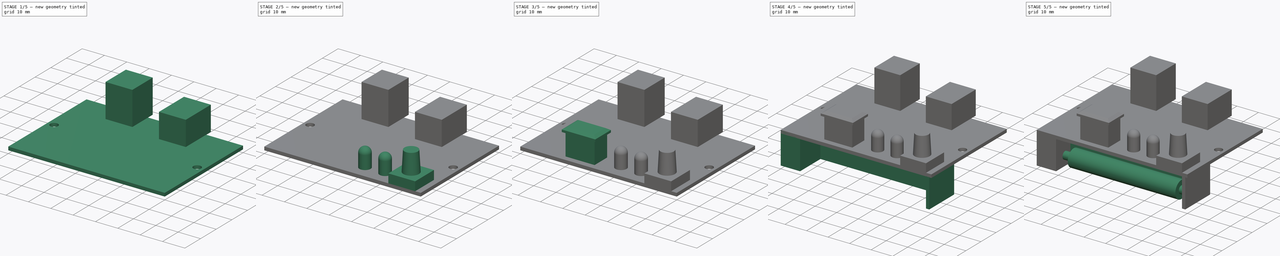
[diagram: build sequence overview — one tinted view per stage of 5, left to right]
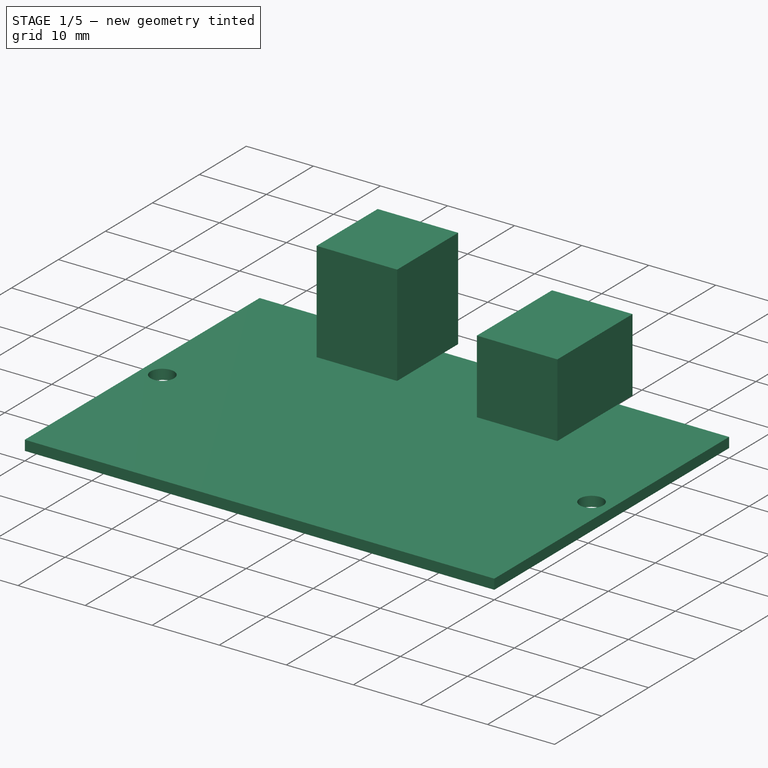
[diagram: stage 1 of 5 — iso view after this stage's code; geometry added in this stage tinted green]
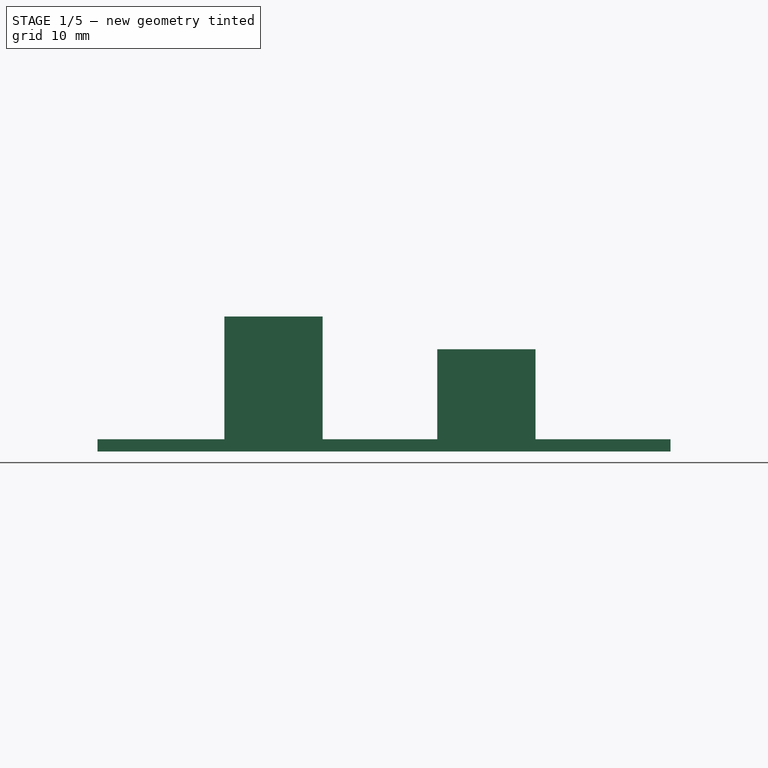
[diagram: stage 1 of 5 — front view after this stage's code; geometry added in this stage tinted green]
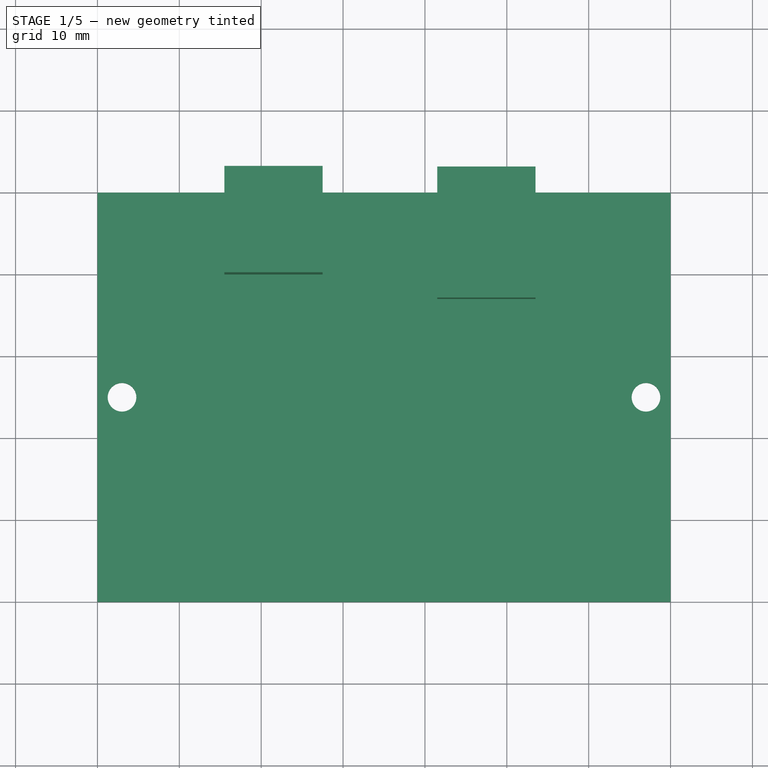
[diagram: stage 1 of 5 — top view after this stage's code; geometry added in this stage tinted green]
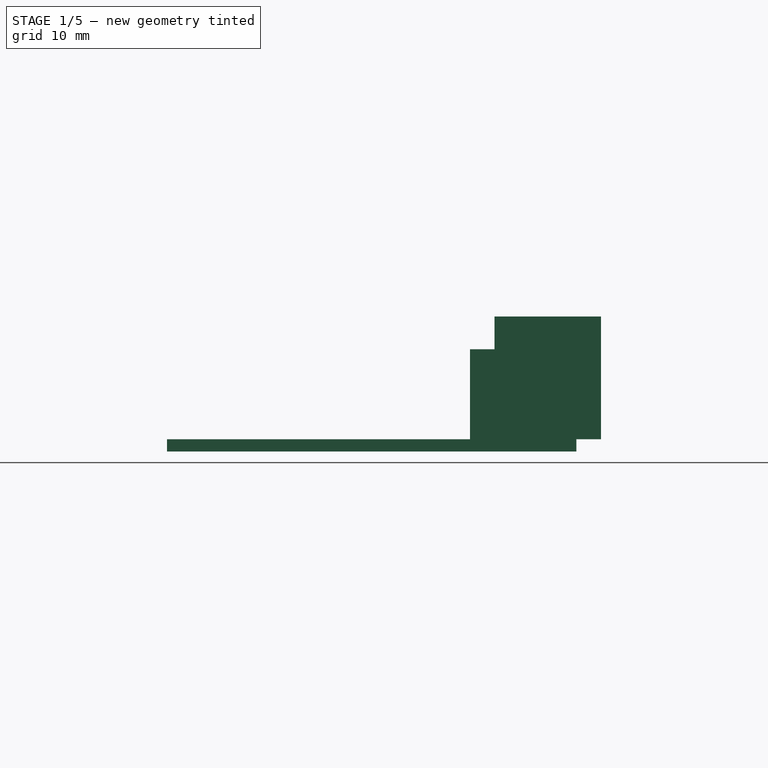
[diagram: stage 1 of 5 — right view after this stage's code; geometry added in this stage tinted green]
FCSTD DOCUMENT  (FreeCAD 1.0R39285 (Git))
Label: Printer-Parts
License: All rights reserved
LicenseURL: https://en.wikipedia.org/wiki/All_rights_reserved
objects: Sketcher::SketchObject×20, PartDesign::Pad×15, PartDesign::Pocket×3, PartDesign::Fillet×2, PartDesign::Chamfer×2, PartDesign::Body×2, PartDesign::AdditiveLoft×1
note: 111 computed .brp shape members not serialized (recipe doc carries the construction recipe); baked Part::Feature solids carry a one-line shape summary decoded from their .brp

FEATURE [PartDesign::Body] Body  label="Heat"
  AllowCompound = false
  Group = -> [Sketch,Pad,Sketch001,Pocket,Sketch002,Pad001,Fillet,Chamfer,Sketch003,Pad002,Sketch004,Pad003,Sketch005,Pad004,Sketch006,Pad005,Sketch007,Pad006,Sketch008,Pad007]
  Origin = -> Origin
  Placement = pos=(0,0,0) rot=(0,1,0;3.14159rad)
  Tip = -> Pad007
FEATURE [Sketcher::SketchObject] Sketch009
  ArcFitTolerance = 1e-06
  AttachmentSupport = -> [XY_Plane001]
  FullyConstrained = true
  MakeInternals = false
  MapMode = 5
  sketch-geometry (10):
    g0: LineSegment StartX=0 StartY=0 StartZ=0 EndX=70 EndY=0 EndZ=0
    g1: LineSegment StartX=70 StartY=0 StartZ=0 EndX=70 EndY=50 EndZ=0
    g2: LineSegment StartX=70 StartY=50 StartZ=0 EndX=0 EndY=50 EndZ=0
    g3: LineSegment StartX=0 StartY=50 StartZ=0 EndX=0 EndY=0 EndZ=0
    g4: Circle CenterX=3 CenterY=25 CenterZ=0 NormalX=0 NormalY=0 NormalZ=1 AngleXU=0 Radius=1.75
    g5: Circle CenterX=67 CenterY=25 CenterZ=0 NormalX=0 NormalY=0 NormalZ=1 AngleXU=0 Radius=1.75
    g6: LineSegment [constr] StartX=3 StartY=25 StartZ=0 EndX=0 EndY=25 EndZ=0
    g7: LineSegment [constr] StartX=67 StartY=25 StartZ=0 EndX=70 EndY=25 EndZ=0
    g8: LineSegment [constr] StartX=3 StartY=25 StartZ=0 EndX=3 EndY=50 EndZ=0
    g9: LineSegment [constr] StartX=3 StartY=25 StartZ=0 EndX=3 EndY=0 EndZ=0
  constraints (29):
    c: Coincident(g0,g1)
    c: Coincident(g1,g2)
    c: Coincident(g2,g3)
    c: Coincident(g3,g0)
    c: Horizontal(g0)
    c: Horizontal(g2)
    c: Vertical(g1)
    c: Vertical(g3)
    c: Distance(g1,g3) = 70
    c: Distance(g0,g2) = 50
    c: Coincident(g0,g-1)
    c: Equal(g5,g4)
    c: Horizontal(g4,g5)
    c: Coincident(g6,g4)
    c: PointOnObject(g6,g3)
    c: Horizontal(g6)
    c: Coincident(g7,g5)
    c: PointOnObject(g7,g1)
    c: Horizontal(g7)
    c: Equal(g7,g6)
    c: Diameter(g4) = 3.5
    c: Coincident(g8,g4)
    c: PointOnObject(g8,g2)
    c: Vertical(g8)
    c: Coincident(g9,g4)
    c: PointOnObject(g9,g0)
    c: Vertical(g9)
    c: Equal(g9,g8)
    c: DistanceX(g6,g6) = 3
FEATURE [PartDesign::Pad] Pad008
  Direction = (0,0,1)
  Length = 1.5
  Length2 = 10
  Profile = -> Sketch009
  ReferenceAxis = -> Sketch009 [N_Axis]
  Refine = true
  Suppressed = false
  Type = 0
FEATURE [Sketcher::SketchObject] Sketch010
  ArcFitTolerance = 1e-06
  AttachmentSupport = -> [Pad008]
  ExternalGeometry = -> [Pad008]
  FullyConstrained = true
  MakeInternals = false
  MapMode = 5
  Placement = pos=(0,0,1.5) rot=(0,0,1;0rad)
  sketch-geometry (4):
    g0: LineSegment StartX=15.5 StartY=53 StartZ=0 EndX=15.5 EndY=40 EndZ=0
    g1: LineSegment StartX=15.5 StartY=40 StartZ=0 EndX=27.5 EndY=40 EndZ=0
    g2: LineSegment StartX=27.5 StartY=40 StartZ=0 EndX=27.5 EndY=53 EndZ=0
    g3: LineSegment StartX=27.5 StartY=53 StartZ=0 EndX=15.5 EndY=53 EndZ=0
  constraints (12):
    c: Coincident(g0,g1)
    c: Coincident(g1,g2)
    c: Coincident(g2,g3)
    c: Coincident(g3,g0)
    c: Vertical(g0)
    c: Vertical(g2)
    c: Horizontal(g1)
    c: Horizontal(g3)
    c: Distance(g0,g2) = 12
    c: Distance(g1,g3) = 13
    c: DistanceX(g-3,g0) = 15.5
    c: DistanceY(g-3,g0) = 3
FEATURE [PartDesign::Pad] Pad009
  BaseFeature = -> Pad008
  Direction = (0,0,1)
  Length = 15
  Length2 = 10
  Profile = -> Sketch010
  ReferenceAxis = -> Sketch010 [N_Axis]
  Refine = true
  Suppressed = false
  Type = 0
FEATURE [Sketcher::SketchObject] Sketch011
  ArcFitTolerance = 1e-06
  AttachmentSupport = -> [Pad009]
  ExternalGeometry = -> [Pad009]
  FullyConstrained = true
  MakeInternals = false
  MapMode = 5
  Placement = pos=(0,53,0) rot=(0,0.707107,0.707107;3.14159rad)
  sketch-geometry (7):
    g0: LineSegment StartX=-26.5 StartY=15.5 StartZ=0 EndX=-26.5 EndY=1.5 EndZ=0
    g1: LineSegment StartX=-26.5 StartY=1.5 StartZ=0 EndX=-16.5 EndY=1.5 EndZ=0
    g2: LineSegment StartX=-16.5 StartY=1.5 StartZ=0 EndX=-16.5 EndY=15.5 EndZ=0
    g3: LineSegment StartX=-16.5 StartY=15.5 StartZ=0 EndX=-26.5 EndY=15.5 EndZ=0
    g4: LineSegment [constr] StartX=-27.5 StartY=1.5 StartZ=0 EndX=-26.5 EndY=1.5 EndZ=0
    g5: LineSegment [constr] StartX=-16.5 StartY=1.5 StartZ=0 EndX=-15.5 EndY=1.5 EndZ=0
    g6: LineSegment [constr] StartX=-16.5 StartY=15.5 StartZ=0 EndX=-16.5 EndY=16.5 EndZ=0
  constraints (19):
    c: Coincident(g0,g1)
    c: Coincident(g1,g2)
    c: Coincident(g2,g3)
    c: Coincident(g3,g0)
    c: Vertical(g0)
    c: Vertical(g2)
    c: Horizontal(g1)
    c: Horizontal(g3)
    c: PointOnObject(g1,g-4)
    c: Coincident(g4,g-4)
    c: Coincident(g4,g0)
    c: Coincident(g5,g1)
    c: Coincident(g5,g-4)
    c: Coincident(g6,g2)
    c: PointOnObject(g6,g-3)
    c: Vertical(g6)
    c: Equal(g6,g5)
    c: Equal(g5,g4)
    c: DistanceY(g6,g6) = 1
FEATURE [PartDesign::Pocket] Pocket001
  BaseFeature = -> Pad009
  Direction = (0,-1,2e-16)
  Length = 10
  Length2 = 5
  Profile = -> Sketch011
  ReferenceAxis = -> Sketch011 [N_Axis]
  Refine = true
  Suppressed = false
  Type = 0
FEATURE [Sketcher::SketchObject] Sketch012
  ArcFitTolerance = 1e-06
  AttachmentSupport = -> [Pocket001]
  ExternalGeometry = -> [Pocket001]
  FullyConstrained = true
  MakeInternals = false
  MapMode = 5
  Placement = pos=(0,0,1.5) rot=(0,0,1;0rad)
  sketch-geometry (4):
    g0: LineSegment StartX=41.5 StartY=53 StartZ=0 EndX=41.5 EndY=37 EndZ=0
    g1: LineSegment StartX=41.5 StartY=37 StartZ=0 EndX=53.5 EndY=37 EndZ=0
    g2: LineSegment StartX=53.5 StartY=37 StartZ=0 EndX=53.5 EndY=53 EndZ=0
    g3: LineSegment StartX=53.5 StartY=53 StartZ=0 EndX=41.5 EndY=53 EndZ=0
  constraints (12):
    c: Coincident(g0,g1)
    c: Coincident(g1,g2)
    c: Coincident(g2,g3)
    c: Coincident(g3,g0)
    c: Vertical(g0)
    c: Vertical(g2)
    c: Horizontal(g1)
    c: Horizontal(g3)
    c: Distance(g0,g2) = 12
    c: Distance(g1,g3) = 16
    c: DistanceX(g2,g-3) = 16.5
    c: DistanceY(g-3,g2) = 3
FEATURE [PartDesign::Pad] Pad010
  BaseFeature = -> Pocket001
  Direction = (0,0,1)
  Length = 11
  Length2 = 10
  Profile = -> Sketch012
  ReferenceAxis = -> Sketch012 [N_Axis]
  Refine = true
  Suppressed = false
  Type = 0
FEATURE [Sketcher::SketchObject] Sketch013
  ArcFitTolerance = 1e-06
  AttachmentSupport = -> [Pad010]
  ExternalGeometry = -> [Pad010]
  FullyConstrained = true
  MakeInternals = false
  MapMode = 5
  Placement = pos=(0,53,0) rot=(0,0.707107,0.707107;3.14159rad)
  sketch-geometry (20):
    g0: LineSegment StartX=-52.5 StartY=2.5 StartZ=0 EndX=-42.5 EndY=2.5 EndZ=0
    g1: LineSegment StartX=-42.5 StartY=2.5 StartZ=0 EndX=-42.5 EndY=9.5 EndZ=0
    g2: LineSegment StartX=-42.5 StartY=9.5 StartZ=0 EndX=-44.5 EndY=11.5 EndZ=0
    g3: LineSegment StartX=-44.5 StartY=11.5 StartZ=0 EndX=-50.5 EndY=11.5 EndZ=0
    g4: LineSegment StartX=-50.5 StartY=11.5 StartZ=0 EndX=-52.5 EndY=9.5 EndZ=0
    g5: LineSegment StartX=-52.5 StartY=9.5 StartZ=0 EndX=-52.5 EndY=2.5 EndZ=0
    g6: LineSegment [constr] StartX=-50.5 StartY=11.5 StartZ=0 EndX=-50.5 EndY=12.5 EndZ=0
    g7: LineSegment [constr] StartX=-52.5 StartY=2.5 StartZ=0 EndX=-52.5 EndY=1.5 EndZ=0
    g8: LineSegment [constr] StartX=-52.5 StartY=1.5 StartZ=0 EndX=-53.5 EndY=1.5 EndZ=0
    g9: LineSegment [constr] StartX=-52.5 StartY=9.5 StartZ=0 EndX=-50.5 EndY=9.5 EndZ=0
    g10: LineSegment [constr] StartX=-50.5 StartY=9.5 StartZ=0 EndX=-50.5 EndY=11.5 EndZ=0
    g11: LineSegment [constr] StartX=-42.5 StartY=2.5 StartZ=0 EndX=-41.5 EndY=2.5 EndZ=0
    g12: LineSegment StartX=-49.5 StartY=8.5 StartZ=0 EndX=-49.5 EndY=5.5 EndZ=0
    g13: LineSegment StartX=-49.5 StartY=5.5 StartZ=0 EndX=-45.5 EndY=5.5 EndZ=0
    g14: LineSegment StartX=-45.5 StartY=5.5 StartZ=0 EndX=-45.5 EndY=8.5 EndZ=0
    g15: LineSegment StartX=-45.5 StartY=8.5 StartZ=0 EndX=-49.5 EndY=8.5 EndZ=0
    g16: LineSegment [constr] StartX=-49.5 StartY=5.5 StartZ=0 EndX=-49.5 EndY=2.5 EndZ=0
    g17: LineSegment [constr] StartX=-49.5 StartY=5.5 StartZ=0 EndX=-52.5 EndY=5.5 EndZ=0
    g18: LineSegment [constr] StartX=-45.5 StartY=8.5 StartZ=0 EndX=-45.5 EndY=11.5 EndZ=0
    g19: LineSegment [constr] StartX=-45.5 StartY=8.5 StartZ=0 EndX=-42.5 EndY=8.5 EndZ=0
  constraints (58):
    c: Horizontal(g0)
    c: Coincident(g0,g1)
    c: Vertical(g1)
    c: Coincident(g1,g2)
    c: Coincident(g2,g3)
    c: Horizontal(g3)
    c: Coincident(g3,g4)
    c: Coincident(g4,g5)
    c: Coincident(g5,g0)
    c: Vertical(g5)
    c: Equal(g4,g2)
    c: Horizontal(g4,g1)
    c: Coincident(g6,g3)
    c: PointOnObject(g6,g-3)
    c: Vertical(g6)
    c: Coincident(g7,g0)
    c: PointOnObject(g7,g-4)
    c: Vertical(g7)
    c: Coincident(g8,g7)
    c: Coincident(g8,g-4)
    c: Equal(g8,g7)
    c: Equal(g7,g6)
    c: DistanceY(g6,g6) = 1
    c: Coincident(g9,g4)
    c: Horizontal(g9)
    c: Coincident(g10,g9)
    c: Coincident(g10,g3)
    c: Vertical(g10)
    c: Equal(g10,g9)
    c: DistanceY(g10,g10) = 2
    c: Coincident(g11,g0)
    c: PointOnObject(g11,g-5)
    c: Horizontal(g11)
    c: Equal(g11,g7)
    c: Coincident(g12,g13)
    c: Coincident(g13,g14)
    c: Coincident(g14,g15)
    c: Coincident(g15,g12)
    c: Vertical(g12)
    c: Vertical(g14)
    c: Horizontal(g13)
    c: Horizontal(g15)
    c: Coincident(g16,g12)
    c: PointOnObject(g16,g0)
    c: Vertical(g16)
    c: Coincident(g17,g12)
    c: PointOnObject(g17,g5)
    c: Horizontal(g17)
    c: Coincident(g18,g14)
    c: PointOnObject(g18,g3)
    c: Coincident(g19,g14)
    c: PointOnObject(g19,g1)
    c: Horizontal(g19)
    c: Vertical(g18)
    c: Equal(g18,g19)
    c: Equal(g19,g17)
    c: Equal(g17,g16)
    c: DistanceX(g19,g19) = 3
FEATURE [PartDesign::Pocket] Pocket002
  BaseFeature = -> Pad010
  Direction = (0,-1,2e-16)
  Length = 15
  Length2 = 5
  Profile = -> Sketch013
  ReferenceAxis = -> Sketch013 [N_Axis]
  Refine = true
  Suppressed = false
  Type = 0
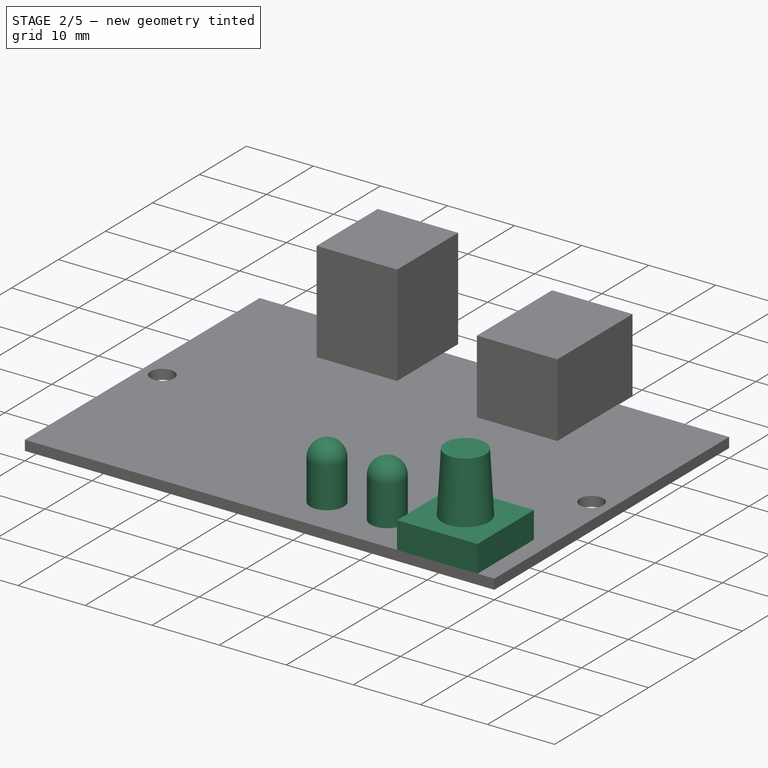
[diagram: stage 2 of 5 — iso view after this stage's code; geometry added in this stage tinted green]
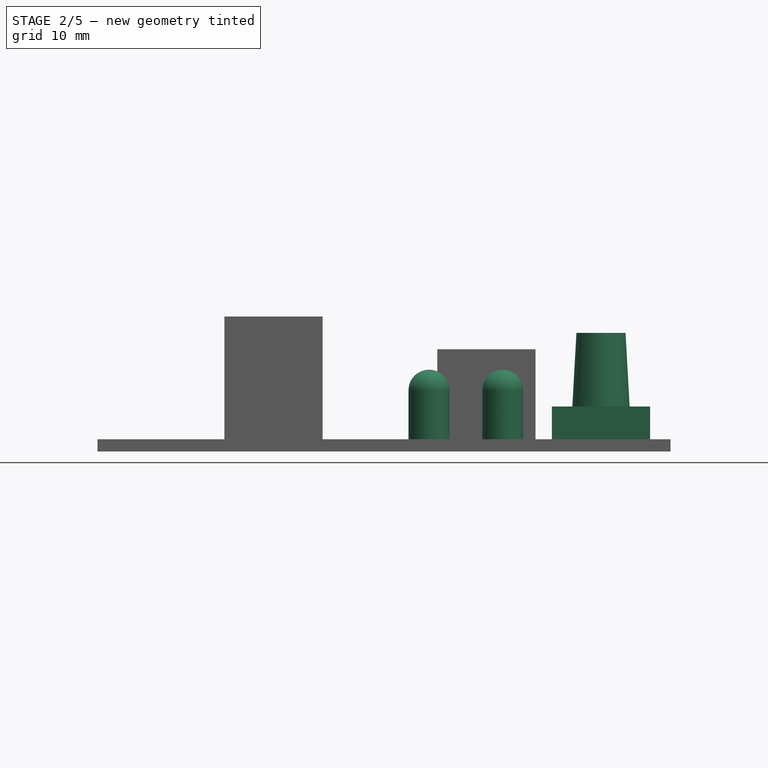
[diagram: stage 2 of 5 — front view after this stage's code; geometry added in this stage tinted green]
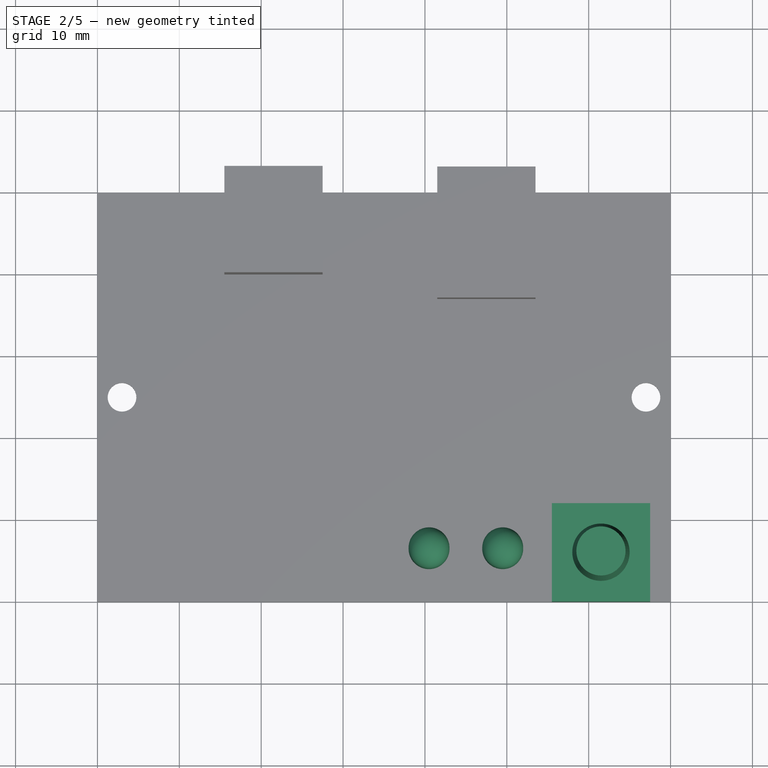
[diagram: stage 2 of 5 — top view after this stage's code; geometry added in this stage tinted green]
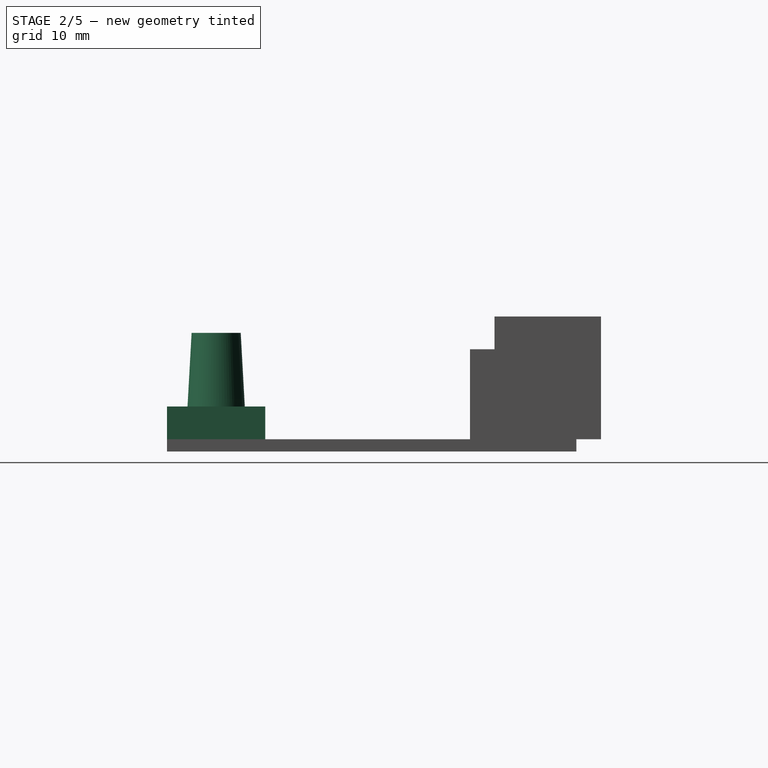
[diagram: stage 2 of 5 — right view after this stage's code; geometry added in this stage tinted green]
FEATURE [Sketcher::SketchObject] Sketch014
  ArcFitTolerance = 1e-06
  AttachmentSupport = -> [Pocket002]
  ExternalGeometry = -> [Pocket002]
  FullyConstrained = true
  MakeInternals = false
  MapMode = 5
  Placement = pos=(0,0,1.5) rot=(0,0,1;0rad)
  sketch-geometry (4):
    g0: LineSegment StartX=55.5 StartY=12 StartZ=0 EndX=55.5 EndY=0 EndZ=0
    g1: LineSegment StartX=55.5 StartY=0 StartZ=0 EndX=67.5 EndY=0 EndZ=0
    g2: LineSegment StartX=67.5 StartY=0 StartZ=0 EndX=67.5 EndY=12 EndZ=0
    g3: LineSegment StartX=67.5 StartY=12 StartZ=0 EndX=55.5 EndY=12 EndZ=0
  constraints (12):
    c: Coincident(g0,g1)
    c: Coincident(g1,g2)
    c: Coincident(g2,g3)
    c: Coincident(g3,g0)
    c: Vertical(g0)
    c: Vertical(g2)
    c: Horizontal(g1)
    c: Horizontal(g3)
    c: Equal(g3,g0)
    c: DistanceX(g3,g3) = 12
    c: PointOnObject(g1,g-1)
    c: DistanceX(g1,g-3) = 2.5
FEATURE [PartDesign::Pad] Pad011
  BaseFeature = -> Pocket002
  Direction = (0,0,1)
  Length = 4
  Length2 = 10
  Profile = -> Sketch014
  ReferenceAxis = -> Sketch014 [N_Axis]
  Refine = true
  Suppressed = false
  Type = 0
FEATURE [Sketcher::SketchObject] Sketch015
  ArcFitTolerance = 1e-06
  AttachmentSupport = -> [Pad011]
  ExternalGeometry = -> [Pad011]
  FullyConstrained = true
  MakeInternals = false
  MapMode = 5
  Placement = pos=(0,0,5.5) rot=(0,0,1;0rad)
  sketch-geometry (1):
    g0: Circle CenterX=61.5 CenterY=6 CenterZ=0 NormalX=0 NormalY=0 NormalZ=1 AngleXU=0 Radius=3.5
  constraints (2):
    c: Symmetric(g-3,g-4,g0)
    c: Diameter(g0) = 7
FEATURE [Sketcher::SketchObject] Sketch016
  ArcFitTolerance = 1e-06
  AttachmentOffset = pos=(0,0,9) rot=(0,0,1;0rad)
  AttachmentSupport = -> [Pad011]
  ExternalGeometry = -> [Pad011]
  FullyConstrained = true
  MakeInternals = false
  MapMode = 5
  Placement = pos=(0,0,14.5) rot=(0,0,1;0rad)
  sketch-geometry (1):
    g0: Circle CenterX=61.5 CenterY=6 CenterZ=0 NormalX=0 NormalY=0 NormalZ=1 AngleXU=0 Radius=3
  constraints (2):
    c: Symmetric(g-3,g-4,g0)
    c: Diameter(g0) = 6
FEATURE [PartDesign::AdditiveLoft] AdditiveLoft
  BaseFeature = -> Pad011
  Closed = false
  Profile = -> Sketch015
  Refine = true
  Ruled = false
  Sections = -> [Sketch016]
  Suppressed = false
FEATURE [Sketcher::SketchObject] Sketch017
  ArcFitTolerance = 1e-06
  AttachmentSupport = -> [AdditiveLoft]
  ExternalGeometry = -> [AdditiveLoft]
  FullyConstrained = true
  MakeInternals = false
  MapMode = 5
  Placement = pos=(0,0,1.5) rot=(0,0,1;0rad)
  sketch-geometry (6):
    g0: Circle CenterX=49.5 CenterY=6.5 CenterZ=0 NormalX=0 NormalY=0 NormalZ=1 AngleXU=0 Radius=2.5
    g1: Circle CenterX=40.5 CenterY=6.5 CenterZ=0 NormalX=0 NormalY=0 NormalZ=1 AngleXU=0 Radius=2.5
    g2: GeomPoint [constr] X=43 Y=6.5 Z=0
    g3: GeomPoint [constr] X=47 Y=6.5 Z=0
    g4: GeomPoint [constr] X=49.5 Y=4 Z=0
    g5: GeomPoint [constr] X=52 Y=6.5 Z=0
  constraints (14):
    c: Equal(g1,g0)
    c: Horizontal(g1,g0)
    c: Diameter(g0) = 5
    c: PointOnObject(g2,g1)
    c: PointOnObject(g3,g0)
    c: Horizontal(g1,g2)
    c: Horizontal(g2,g3)
    c: DistanceX(g2,g3) = 4
    c: PointOnObject(g4,g0)
    c: Vertical(g4,g0)
    c: PointOnObject(g5,g0)
    c: Horizontal(g5,g0)
    c: DistanceX(g5,g-3) = 18
    c: DistanceY(g-3,g4) = 4
FEATURE [PartDesign::Pad] Pad012
  BaseFeature = -> AdditiveLoft
  Direction = (0,0,1)
  Length = 8.5
  Length2 = 10
  Profile = -> Sketch017
  ReferenceAxis = -> Sketch017 [N_Axis]
  Refine = true
  Suppressed = false
  Type = 0
FEATURE [PartDesign::Fillet] Fillet001
  Base = -> Pad012 [Edge75,Edge73]
  BaseFeature = -> Pad012
  Radius = 2.5
  Refine = true
  SupportTransform = false
  Suppressed = false
  UseAllEdges = false
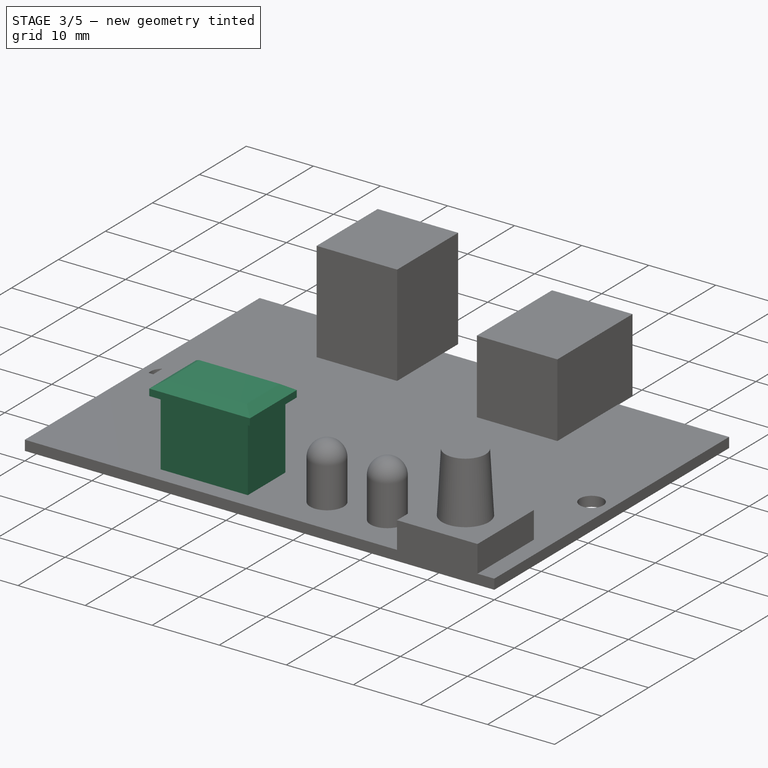
[diagram: stage 3 of 5 — iso view after this stage's code; geometry added in this stage tinted green]
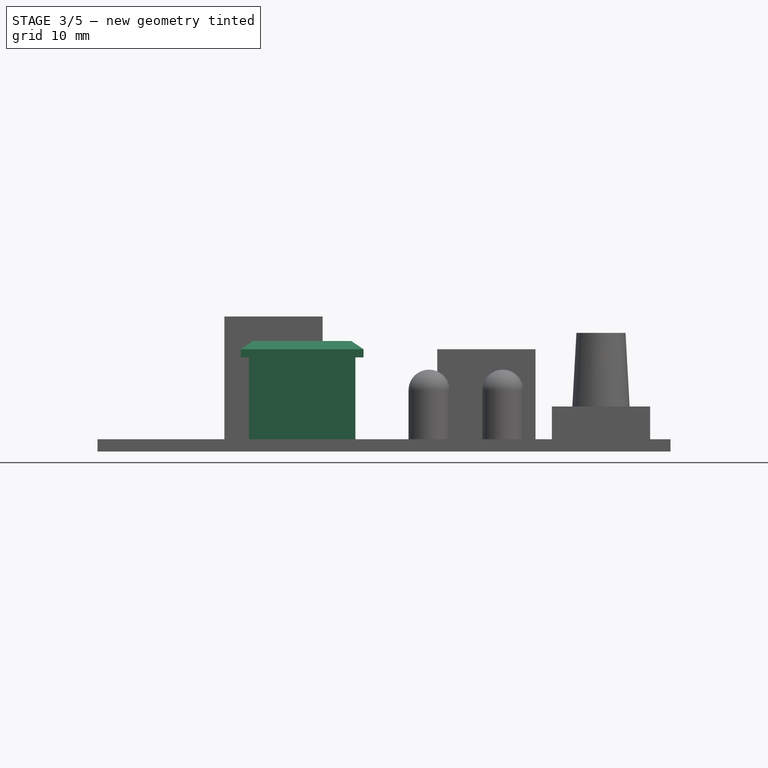
[diagram: stage 3 of 5 — front view after this stage's code; geometry added in this stage tinted green]
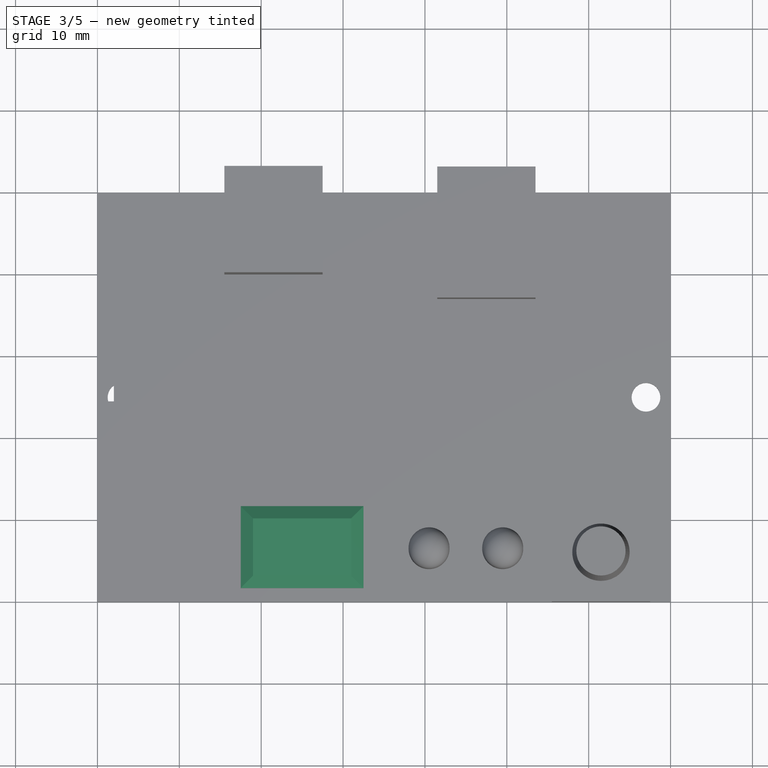
[diagram: stage 3 of 5 — top view after this stage's code; geometry added in this stage tinted green]
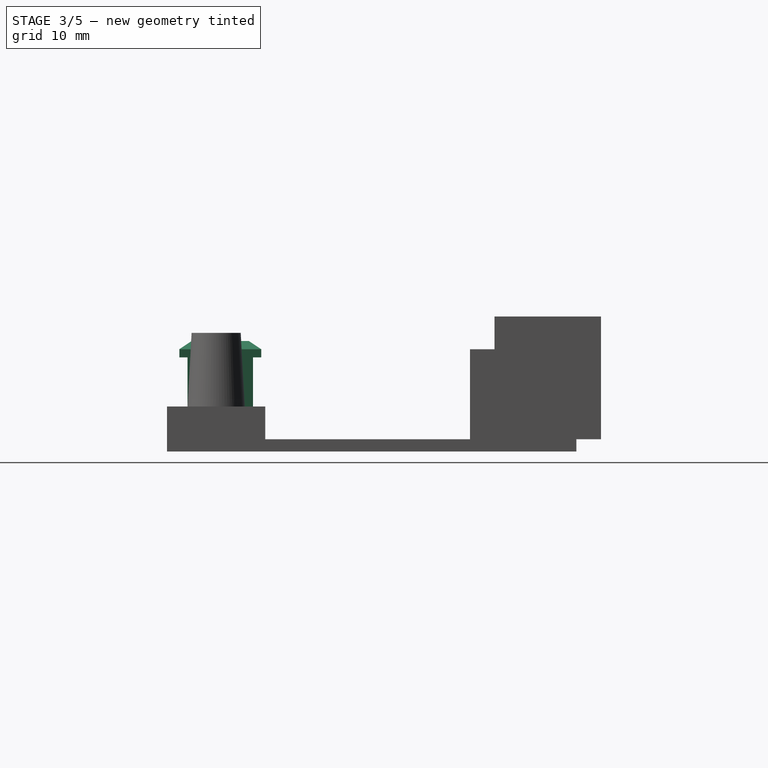
[diagram: stage 3 of 5 — right view after this stage's code; geometry added in this stage tinted green]
FEATURE [Sketcher::SketchObject] Sketch
  ArcFitTolerance = 1e-06
  AttachmentSupport = -> [XY_Plane]
  FullyConstrained = true
  MakeInternals = false
  MapMode = 5
  sketch-geometry (13):
    g0: LineSegment StartX=0 StartY=0 StartZ=0 EndX=69 EndY=0 EndZ=0
    g1: LineSegment StartX=69 StartY=0 StartZ=0 EndX=69 EndY=19 EndZ=0
    g2: LineSegment StartX=67 StartY=21 StartZ=0 EndX=9 EndY=21 EndZ=0
    g3: LineSegment StartX=9 StartY=21 StartZ=0 EndX=9 EndY=33 EndZ=0
    g4: LineSegment StartX=9 StartY=33 StartZ=0 EndX=4 EndY=33 EndZ=0
    g5: LineSegment StartX=2 StartY=31 StartZ=0 EndX=2 EndY=24.5 EndZ=0
    g6: LineSegment StartX=0 StartY=0 StartZ=0 EndX=-1e-16 EndY=22 EndZ=0
    g7: LineSegment StartX=2 StartY=24.5 StartZ=0 EndX=1 EndY=24.5 EndZ=0
    g8: LineSegment StartX=1 StartY=24.5 StartZ=0 EndX=-1e-16 EndY=22 EndZ=0
    g9: ArcOfCircle CenterX=4 CenterY=31 CenterZ=0 NormalX=0 NormalY=0 NormalZ=1 AngleXU=0 Radius=2 StartAngle=1.5708 EndAngle=3.14159
    g10: GeomPoint [constr] X=2 Y=33 Z=0
    g11: ArcOfCircle CenterX=67 CenterY=19 CenterZ=0 NormalX=0 NormalY=0 NormalZ=1 AngleXU=0 Radius=2 StartAngle=5e-16 EndAngle=1.5708
    g12: GeomPoint [constr] X=69 Y=21 Z=0
  constraints (34):
    c: Distance(g0) = 69
    c: Coincident(g0,g-1)
    c: PointOnObject(g0,g-1)
    c: Distance(g1,g12) = 21
    c: Coincident(g1,g0)
    c: Vertical(g1)
    c: Distance(g2,g12) = 60
    c: Horizontal(g2)
    c: Distance(g3) = 12
    c: Coincident(g3,g2)
    c: Vertical(g3)
    c: Distance(g4,g10) = 7
    c: Coincident(g4,g3)
    c: Horizontal(g4)
    c: Distance(g5,g10) = 8.5
    c: Vertical(g5)
    c: Distance(g6) = 22
    c: Coincident(g6,g0)
    c: PointOnObject(g6,g-2)
    c: Distance(g7) = 1
    c: Coincident(g7,g5)
    c: Horizontal(g7)
    c: Coincident(g8,g7)
    c: Coincident(g8,g6)
    c: PointOnObject(g10,g4)
    c: PointOnObject(g10,g5)
    c: Tangent(g4,g9) = -1.5708
    c: Tangent(g5,g9) = -1.5708
    c: DistanceX(g5,g9) = 2
    c: PointOnObject(g12,g1)
    c: PointOnObject(g12,g2)
    c: Tangent(g1,g11) = -1.5708
    c: Tangent(g2,g11) = -1.5708
    c: DistanceX(g11,g1) = 2
FEATURE [PartDesign::Pad] Pad
  Direction = (0,0,1)
  Length = 1.5
  Length2 = 10
  Profile = -> Sketch
  ReferenceAxis = -> Sketch [N_Axis]
  Refine = true
  Suppressed = false
  Type = 0
FEATURE [Sketcher::SketchObject] Sketch001
  ArcFitTolerance = 1e-06
  AttachmentSupport = -> [Pad]
  ExternalGeometry = -> [Pad]
  FullyConstrained = true
  MakeInternals = false
  MapMode = 5
  Placement = pos=(0,0,1.5) rot=(0,0,1;0rad)
  sketch-geometry (7):
    g0: Circle CenterX=4 CenterY=31 CenterZ=0 NormalX=0 NormalY=0 NormalZ=1 AngleXU=0 Radius=1
    g1: ArcOfCircle CenterX=67 CenterY=19 CenterZ=0 NormalX=0 NormalY=0 NormalZ=1 AngleXU=0 Radius=1 StartAngle=4.71239 EndAngle=7.85398
    g2: ArcOfCircle CenterX=66.5 CenterY=19 CenterZ=0 NormalX=0 NormalY=0 NormalZ=1 AngleXU=0 Radius=1 StartAngle=1.5708 EndAngle=4.71239
    g3: LineSegment StartX=67 StartY=18 StartZ=0 EndX=66.5 EndY=18 EndZ=0
    g4: LineSegment StartX=67 StartY=20 StartZ=0 EndX=66.5 EndY=20 EndZ=0
    g5: GeomPoint X=65.5 Y=19 Z=0
    g6: GeomPoint X=68 Y=19 Z=0
  constraints (15):
    c: Diameter(g0) = 2
    c: Coincident(g0,g-3)
    c: Tangent(g1,g3) = 1.5708
    c: Tangent(g1,g4) = -1.5708
    c: Tangent(g2,g3) = 1.5708
    c: Tangent(g2,g4) = -1.5708
    c: Equal(g1,g2)
    c: Coincident(g1,g-4)
    c: Horizontal(g3)
    c: Diameter(g1) = 2
    c: PointOnObject(g5,g2)
    c: PointOnObject(g6,g1)
    c: Horizontal(g6,g1)
    c: Horizontal(g5,g2)
    c: DistanceX(g5,g6) = 2.5
FEATURE [PartDesign::Pocket] Pocket
  BaseFeature = -> Pad
  Direction = (0,0,-1)
  Length = 5
  Length2 = 5
  Profile = -> Sketch001
  ReferenceAxis = -> Sketch001 [N_Axis]
  Refine = true
  Suppressed = false
  Type = 1
FEATURE [Sketcher::SketchObject] Sketch018
  ArcFitTolerance = 1e-06
  AttachmentSupport = -> [Fillet001]
  FullyConstrained = true
  MakeInternals = false
  MapMode = 5
  Placement = pos=(0,0,1.5) rot=(0,0,1;0rad)
  sketch-geometry (4):
    g0: LineSegment StartX=18.5 StartY=10.5 StartZ=0 EndX=18.5 EndY=2.5 EndZ=0
    g1: LineSegment StartX=18.5 StartY=2.5 StartZ=0 EndX=31.5 EndY=2.5 EndZ=0
    g2: LineSegment StartX=31.5 StartY=2.5 StartZ=0 EndX=31.5 EndY=10.5 EndZ=0
    g3: LineSegment StartX=31.5 StartY=10.5 StartZ=0 EndX=18.5 EndY=10.5 EndZ=0
  constraints (12):
    c: Coincident(g0,g1)
    c: Coincident(g1,g2)
    c: Coincident(g2,g3)
    c: Coincident(g3,g0)
    c: Vertical(g0)
    c: Vertical(g2)
    c: Horizontal(g1)
    c: Horizontal(g3)
    c: Distance(g0,g2) = 13
    c: Distance(g1,g3) = 8
    c: DistanceY(g-1,g1) = 2.5
    c: DistanceX(g-1,g0) = 18.5
FEATURE [PartDesign::Pad] Pad013
  BaseFeature = -> Fillet001
  Direction = (0,0,1)
  Length = 10
  Length2 = 10
  Profile = -> Sketch018
  ReferenceAxis = -> Sketch018 [N_Axis]
  Refine = true
  Suppressed = false
  Type = 0
FEATURE [Sketcher::SketchObject] Sketch019
  ArcFitTolerance = 1e-06
  AttachmentSupport = -> [Pad013]
  ExternalGeometry = -> [Pad013]
  FullyConstrained = true
  MakeInternals = false
  MapMode = 5
  Placement = pos=(0,0,11.5) rot=(0,0,1;0rad)
  sketch-geometry (8):
    g0: LineSegment StartX=17.5 StartY=11.5 StartZ=0 EndX=17.5 EndY=1.5 EndZ=0
    g1: LineSegment StartX=17.5 StartY=1.5 StartZ=0 EndX=32.5 EndY=1.5 EndZ=0
    g2: LineSegment StartX=32.5 StartY=1.5 StartZ=0 EndX=32.5 EndY=11.5 EndZ=0
    g3: LineSegment StartX=32.5 StartY=11.5 StartZ=0 EndX=17.5 EndY=11.5 EndZ=0
    g4: LineSegment [constr] StartX=17.5 StartY=10.5 StartZ=0 EndX=18.5 EndY=10.5 EndZ=0
    g5: LineSegment [constr] StartX=18.5 StartY=10.5 StartZ=0 EndX=18.5 EndY=11.5 EndZ=0
    g6: LineSegment [constr] StartX=31.5 StartY=2.5 StartZ=0 EndX=32.5 EndY=2.5 EndZ=0
    g7: LineSegment [constr] StartX=31.5 StartY=2.5 StartZ=0 EndX=31.5 EndY=1.5 EndZ=0
  constraints (24):
    c: Coincident(g0,g1)
    c: Coincident(g1,g2)
    c: Coincident(g2,g3)
    c: Coincident(g3,g0)
    c: Vertical(g0)
    c: Vertical(g2)
    c: Horizontal(g1)
    c: Horizontal(g3)
    c: PointOnObject(g4,g0)
    c: Coincident(g4,g-3)
    c: Coincident(g5,g4)
    c: PointOnObject(g5,g3)
    c: Vertical(g5)
    c: Coincident(g6,g-4)
    c: PointOnObject(g6,g2)
    c: Horizontal(g6)
    c: Coincident(g7,g6)
    c: PointOnObject(g7,g1)
    c: Vertical(g7)
    c: Equal(g7,g6)
    c: Equal(g6,g5)
    c: Equal(g5,g4)
    c: Horizontal(g4)
    c: DistanceX(g4,g4) = 1
FEATURE [PartDesign::Pad] Pad014
  BaseFeature = -> Pad013
  Direction = (0,0,1)
  Length = 2
  Length2 = 10
  Profile = -> Sketch019
  ReferenceAxis = -> Sketch019 [N_Axis]
  Refine = true
  Suppressed = false
  Type = 0
FEATURE [PartDesign::Chamfer] Chamfer001
  Angle = 45
  Base = -> Pad014 [Edge130,Edge133,Edge132,Edge128]
  BaseFeature = -> Pad014
  ChamferType = 1
  FlipDirection = false
  Refine = true
  Size = 1
  Size2 = 1.5
  SupportTransform = false
  Suppressed = false
  UseAllEdges = false
FEATURE [PartDesign::Body] Body001  label="Körper"
  AllowCompound = false
  Group = -> [Sketch009,Pad008,Sketch010,Pad009,Sketch011,Pocket001,Sketch012,Pad010,Sketch013,Pocket002,Sketch014,Pad011,Sketch015,Sketch016,AdditiveLoft,Sketch017,Pad012,Fillet001,Sketch018,Pad013,Sketch019,Pad014,Chamfer001]
  Origin = -> Origin001
  Tip = -> Chamfer001
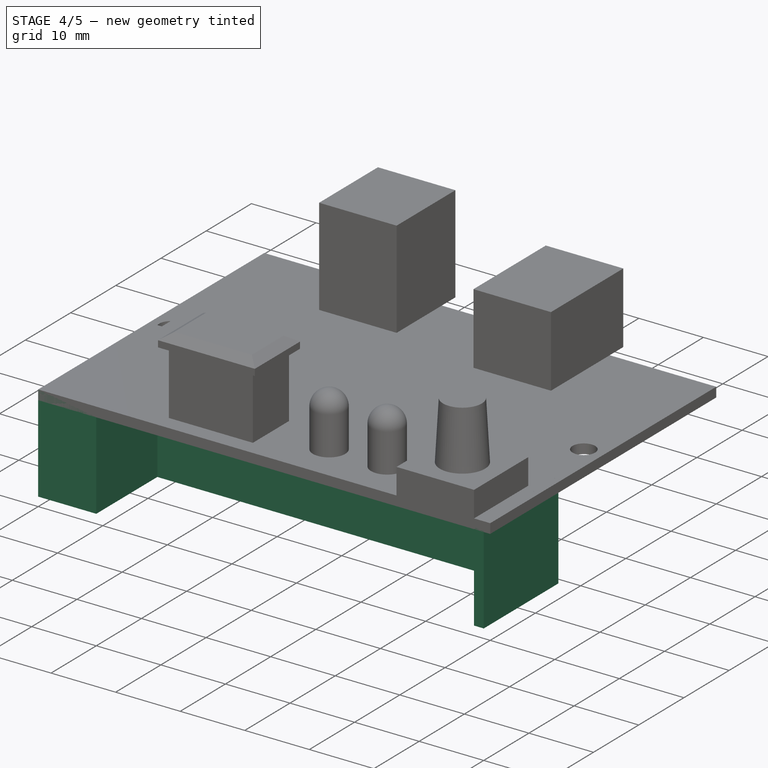
[diagram: stage 4 of 5 — iso view after this stage's code; geometry added in this stage tinted green]
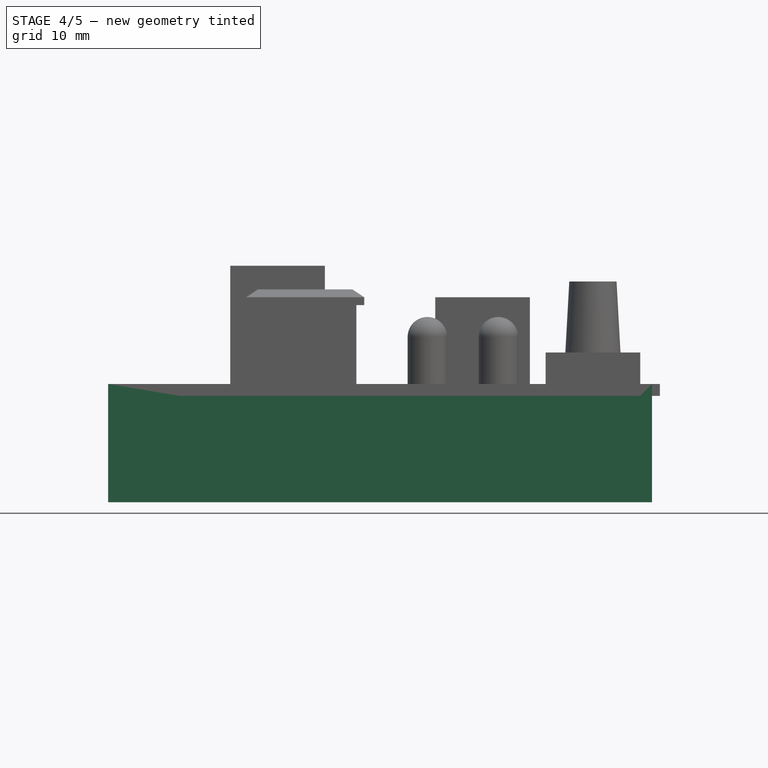
[diagram: stage 4 of 5 — front view after this stage's code; geometry added in this stage tinted green]
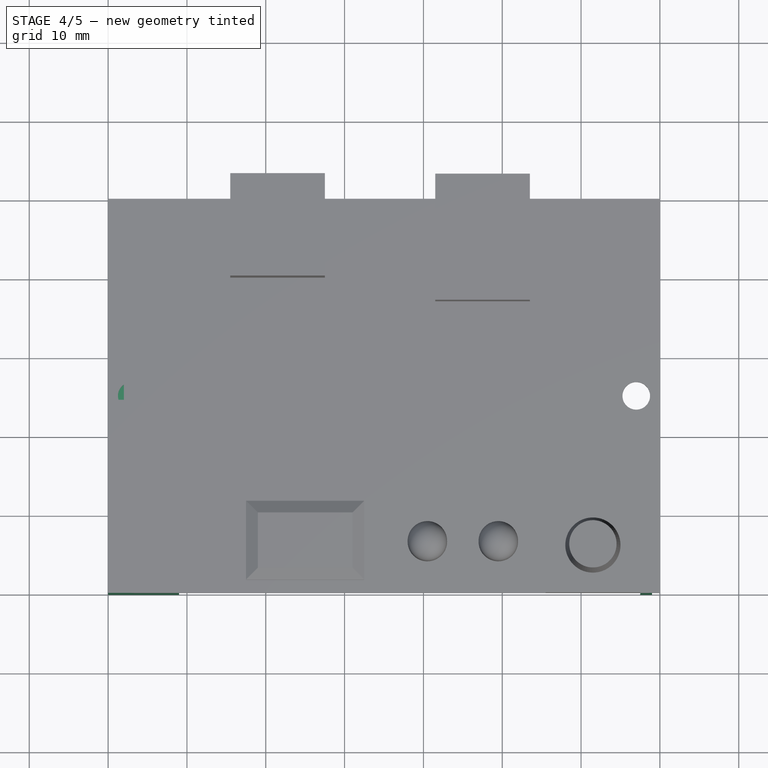
[diagram: stage 4 of 5 — top view after this stage's code; geometry added in this stage tinted green]
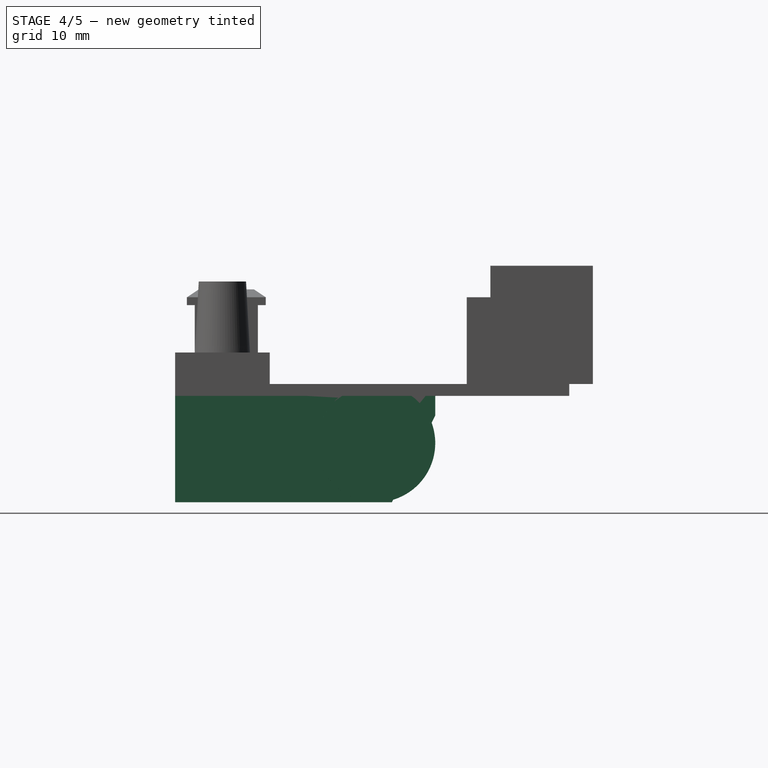
[diagram: stage 4 of 5 — right view after this stage's code; geometry added in this stage tinted green]
FEATURE [Sketcher::SketchObject] Sketch002
  ArcFitTolerance = 1e-06
  AttachmentSupport = -> [Pocket]
  ExternalGeometry = -> [Pocket]
  FullyConstrained = true
  MakeInternals = false
  MapMode = 5
  Placement = pos=(0,0,0) rot=(1,0,0;3.14159rad)
  sketch-geometry (13):
    g0: LineSegment StartX=69 StartY=-16.5 StartZ=0 EndX=9 EndY=-16.5 EndZ=0
    g1: LineSegment StartX=69 StartY=0 StartZ=0 EndX=67.5 EndY=0 EndZ=0
    g2: LineSegment StartX=69 StartY=0 StartZ=0 EndX=69 EndY=-16.5 EndZ=0
    g3: LineSegment StartX=67.5 StartY=0 StartZ=0 EndX=67.5 EndY=-13.5 EndZ=0
    g4: LineSegment StartX=0 StartY=0 StartZ=0 EndX=9 EndY=0 EndZ=0
    g5: LineSegment StartX=0 StartY=0 StartZ=0 EndX=0 EndY=-22 EndZ=0
    g6: LineSegment StartX=67.5 StartY=-13.5 StartZ=0 EndX=9 EndY=-13.5 EndZ=0
    g7: LineSegment StartX=9 StartY=-33 StartZ=0 EndX=9 EndY=-16.5 EndZ=0
    g8: LineSegment StartX=9 StartY=-13.5 StartZ=0 EndX=9 EndY=0 EndZ=0
    g9: LineSegment StartX=0 StartY=-22 StartZ=0 EndX=2 EndY=-28 EndZ=0
    g10: LineSegment StartX=9 StartY=-33 StartZ=0 EndX=7 EndY=-33 EndZ=0
    g11: LineSegment StartX=7 StartY=-33 StartZ=0 EndX=7 EndY=-28 EndZ=0
    g12: LineSegment StartX=7 StartY=-28 StartZ=0 EndX=2 EndY=-28 EndZ=0
  constraints (35):
    c: Horizontal(g0)
    c: DistanceY(g-3,g0) = 4.5
    c: PointOnObject(g1,g-1)
    c: Coincident(g1,g-4)
    c: Coincident(g2,g1)
    c: PointOnObject(g2,g-4)
    c: Coincident(g3,g1)
    c: Vertical(g3)
    c: DistanceX(g1,g1) = 1.5
    c: Distance(g4) = 9
    c: Coincident(g4,g-1)
    c: PointOnObject(g4,g-1)
    c: Coincident(g5,g4)
    c: Coincident(g6,g3)
    c: Horizontal(g6)
    c: DistanceY(g0,g3) = 3
    c: Coincident(g7,g0)
    c: Vertical(g7)
    c: Coincident(g8,g6)
    c: Coincident(g8,g4)
    c: Vertical(g8)
    c: Coincident(g0,g2)
    c: Coincident(g9,g5)
    c: PointOnObject(g9,g-7)
    c: Coincident(g5,g-5)
    c: Coincident(g7,g-8)
    c: Coincident(g10,g7)
    c: PointOnObject(g10,g-8)
    c: Coincident(g11,g10)
    c: Vertical(g11)
    c: Coincident(g12,g11)
    c: Coincident(g12,g9)
    c: Horizontal(g12)
    c: DistanceY(g11,g11) = 5
    c: DistanceX(g10,g10) = 2
FEATURE [PartDesign::Pad] Pad001
  BaseFeature = -> Pocket
  Direction = (0,0,-1)
  Length = 13.5
  Length2 = 10
  Profile = -> Sketch002
  ReferenceAxis = -> Sketch002 [N_Axis]
  Refine = true
  Suppressed = false
  Type = 0
FEATURE [PartDesign::Fillet] Fillet
  Base = -> Pad001 [Edge61]
  BaseFeature = -> Pad001
  Radius = 2
  Refine = true
  SupportTransform = false
  Suppressed = false
  UseAllEdges = false
FEATURE [PartDesign::Chamfer] Chamfer
  Angle = 45
  Base = -> Fillet [Edge19]
  BaseFeature = -> Fillet
  ChamferType = 1
  FlipDirection = false
  Refine = true
  Size = 5.5
  Size2 = 11
  SupportTransform = false
  Suppressed = false
  UseAllEdges = false
FEATURE [Sketcher::SketchObject] Sketch003
  ArcFitTolerance = 1e-06
  AttachmentSupport = -> [Chamfer]
  ExternalGeometry = -> [Chamfer]
  FullyConstrained = true
  MakeInternals = false
  MapMode = 5
  Placement = pos=(9,0,0) rot=(0.57735,0.57735,0.57735;2.0944rad)
  sketch-geometry (3):
    g0: Circle CenterX=25.5 CenterY=-6 CenterZ=0 NormalX=0 NormalY=0 NormalZ=1 AngleXU=0 Radius=7.5
    g1: GeomPoint X=25.5 Y=1.5 Z=0
    g2: GeomPoint X=33 Y=-6 Z=0
  constraints (7):
    c: Diameter(g0) = 15
    c: PointOnObject(g1,g0)
    c: Vertical(g1,g0)
    c: PointOnObject(g1,g-3)
    c: PointOnObject(g2,g0)
    c: Horizontal(g2,g0)
    c: Vertical(g-4,g2)
FEATURE [PartDesign::Pad] Pad002
  BaseFeature = -> Chamfer
  Direction = (1,0,0)
  Length = 10.5
  Length2 = 10
  Profile = -> Sketch003
  ReferenceAxis = -> Sketch003 [N_Axis]
  Refine = true
  Suppressed = false
  Type = 0
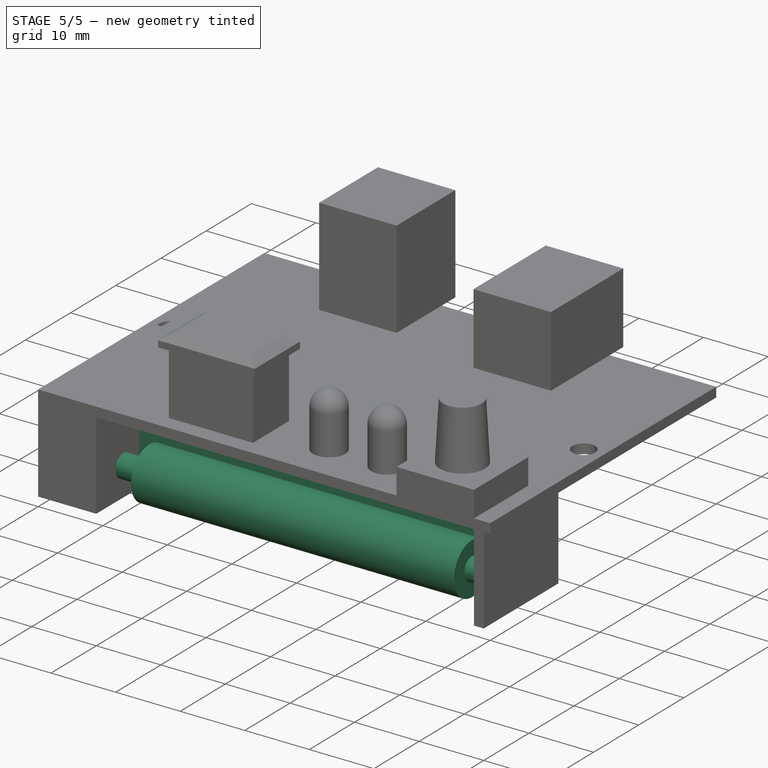
[diagram: stage 5 of 5 — iso view after this stage's code; geometry added in this stage tinted green]
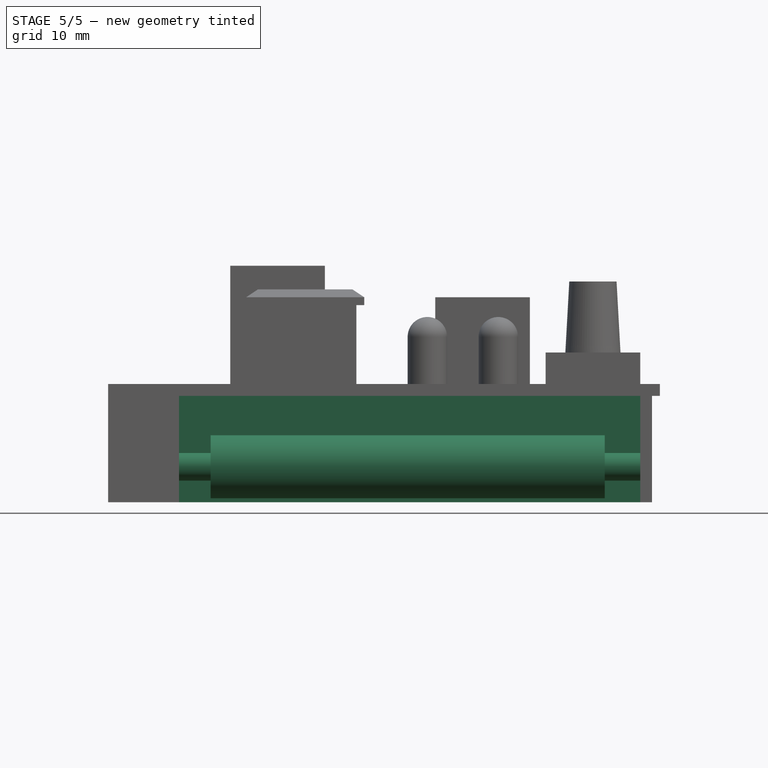
[diagram: stage 5 of 5 — front view after this stage's code; geometry added in this stage tinted green]
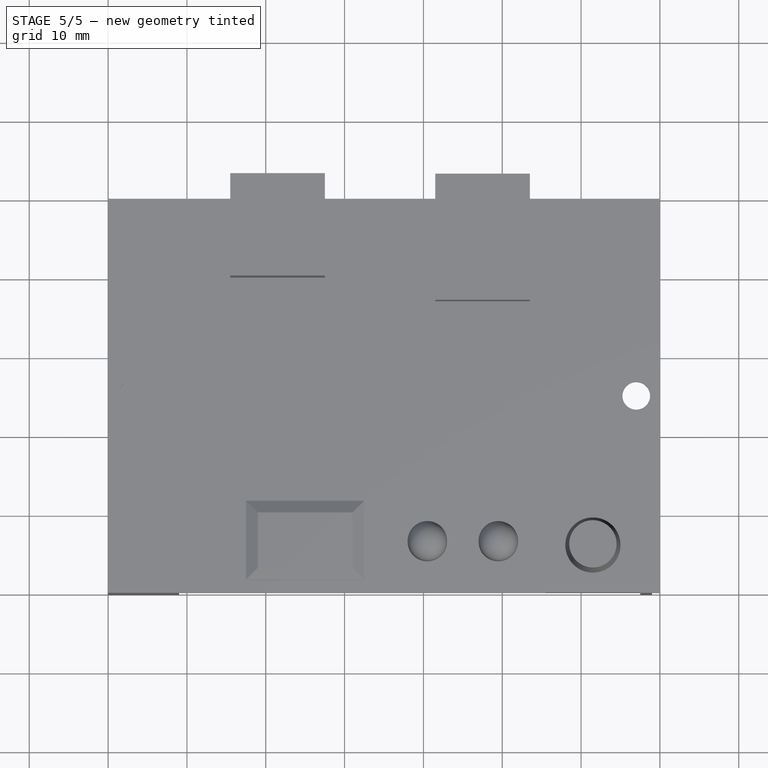
[diagram: stage 5 of 5 — top view after this stage's code; geometry added in this stage tinted green]
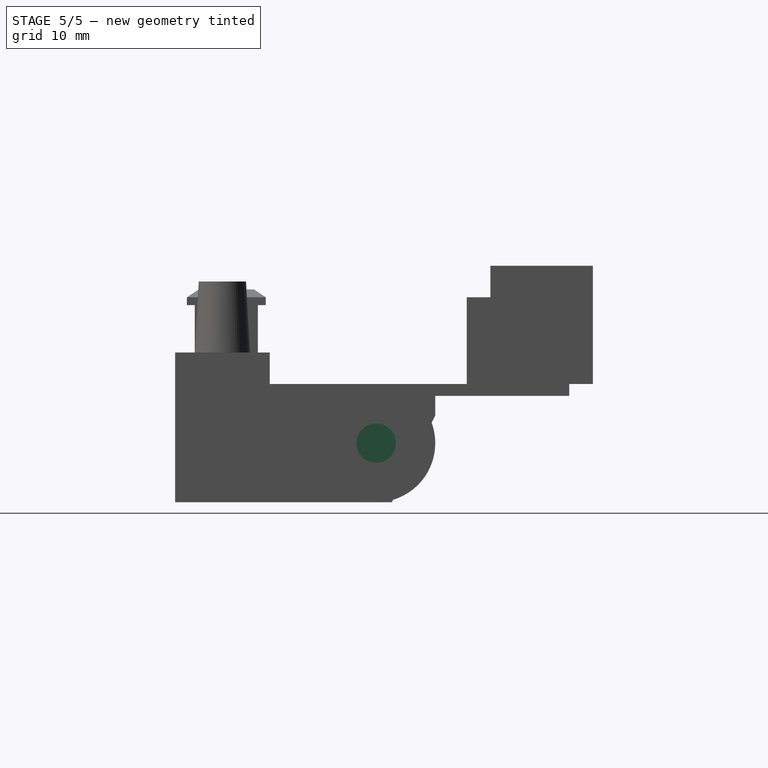
[diagram: stage 5 of 5 — right view after this stage's code; geometry added in this stage tinted green]
FEATURE [Sketcher::SketchObject] Sketch004
  ArcFitTolerance = 1e-06
  AttachmentSupport = -> [Pad002]
  ExternalGeometry = -> [Pad002]
  FullyConstrained = true
  MakeInternals = false
  MapMode = 5
  Placement = pos=(19.5,0,0) rot=(0.57735,0.57735,0.57735;2.0944rad)
  sketch-geometry (1):
    g0: Circle CenterX=25.5 CenterY=-6 CenterZ=0 NormalX=0 NormalY=0 NormalZ=1 AngleXU=0 Radius=2.5
  constraints (2):
    c: Diameter(g0) = 5
    c: Coincident(g0,g-3)
FEATURE [PartDesign::Pad] Pad003
  BaseFeature = -> Pad002
  Direction = (1,0,0)
  Length = 1
  Length2 = 10
  Profile = -> Sketch004
  ReferenceAxis = -> Sketch004 [N_Axis]
  Refine = true
  Suppressed = false
  Type = 0
FEATURE [Sketcher::SketchObject] Sketch005
  ArcFitTolerance = 1e-06
  AttachmentSupport = -> [Pad003]
  ExternalGeometry = -> [Pad003]
  FullyConstrained = true
  MakeInternals = false
  MapMode = 5
  Placement = pos=(9,0,0) rot=(0.57735,0.57735,0.57735;2.0944rad)
  sketch-geometry (4):
    g0: LineSegment StartX=9.5 StartY=0 StartZ=0 EndX=9.5 EndY=-13.5 EndZ=0
    g1: LineSegment StartX=9.5 StartY=-13.5 StartZ=0 EndX=11.5 EndY=-13.5 EndZ=0
    g2: LineSegment StartX=11.5 StartY=-13.5 StartZ=0 EndX=11.5 EndY=0 EndZ=0
    g3: LineSegment StartX=11.5 StartY=0 StartZ=0 EndX=9.5 EndY=0 EndZ=0
  constraints (12):
    c: Coincident(g0,g1)
    c: Coincident(g1,g2)
    c: Coincident(g2,g3)
    c: Coincident(g3,g0)
    c: Vertical(g0)
    c: Vertical(g2)
    c: Horizontal(g1)
    c: Horizontal(g3)
    c: PointOnObject(g0,g-1)
    c: PointOnObject(g1,g-3)
    c: DistanceX(g1,g1) = 2
    c: DistanceX(g0,g-5) = 11.5
FEATURE [PartDesign::Pad] Pad004
  BaseFeature = -> Pad003
  Direction = (1,0,0)
  Length = 10
  Length2 = 10
  Profile = -> Sketch005
  ReferenceAxis = -> Sketch005 [N_Axis]
  Refine = true
  Suppressed = false
  Type = 1
FEATURE [Sketcher::SketchObject] Sketch006
  ArcFitTolerance = 1e-06
  AttachmentSupport = -> [Pad004]
  ExternalGeometry = -> [Pad004]
  FullyConstrained = true
  MakeInternals = false
  MapMode = 5
  Placement = pos=(9,0,0) rot=(0.57735,0.57735,0.57735;2.0944rad)
  sketch-geometry (1):
    g0: Circle CenterX=6 CenterY=-9 CenterZ=0 NormalX=0 NormalY=0 NormalZ=1 AngleXU=0 Radius=1.75
  constraints (3):
    c: DistanceY(g0,g-3) = 9
    c: DistanceX(g-1,g0) = 6
    c: Diameter(g0) = 3.5
FEATURE [PartDesign::Pad] Pad005
  BaseFeature = -> Pad004
  Direction = (1,0,0)
  Length = 4
  Length2 = 10
  Profile = -> Sketch006
  ReferenceAxis = -> Sketch006 [N_Axis]
  Refine = true
  Suppressed = false
  Type = 0
FEATURE [Sketcher::SketchObject] Sketch007
  ArcFitTolerance = 1e-06
  AttachmentSupport = -> [Pad005]
  ExternalGeometry = -> [Pad005]
  FullyConstrained = true
  MakeInternals = false
  MapMode = 5
  Placement = pos=(13,0,0) rot=(0.57735,0.57735,0.57735;2.0944rad)
  sketch-geometry (1):
    g0: Circle CenterX=6 CenterY=-9 CenterZ=0 NormalX=0 NormalY=0 NormalZ=1 AngleXU=0 Radius=4
  constraints (2):
    c: Diameter(g0) = 8
    c: Coincident(g0,g-3)
FEATURE [PartDesign::Pad] Pad006
  BaseFeature = -> Pad005
  Direction = (1,0,0)
  Length = 50
  Length2 = 10
  Profile = -> Sketch007
  ReferenceAxis = -> Sketch007 [N_Axis]
  Refine = true
  Suppressed = false
  Type = 0
FEATURE [Sketcher::SketchObject] Sketch008
  ArcFitTolerance = 1e-06
  AttachmentSupport = -> [Pad006]
  ExternalGeometry = -> [Pad006]
  FullyConstrained = true
  MakeInternals = false
  MapMode = 5
  Placement = pos=(63,0,0) rot=(0.57735,0.57735,0.57735;2.0944rad)
  sketch-geometry (1):
    g0: Circle CenterX=6 CenterY=-9 CenterZ=0 NormalX=0 NormalY=0 NormalZ=1 AngleXU=0 Radius=1.75
  constraints (2):
    c: Diameter(g0) = 3.5
    c: Coincident(g0,g-3)
FEATURE [PartDesign::Pad] Pad007
  BaseFeature = -> Pad006
  Direction = (1,0,0)
  Length = 10
  Length2 = 10
  Profile = -> Sketch008
  ReferenceAxis = -> Sketch008 [N_Axis]
  Refine = true
  Suppressed = false
  Type = 1
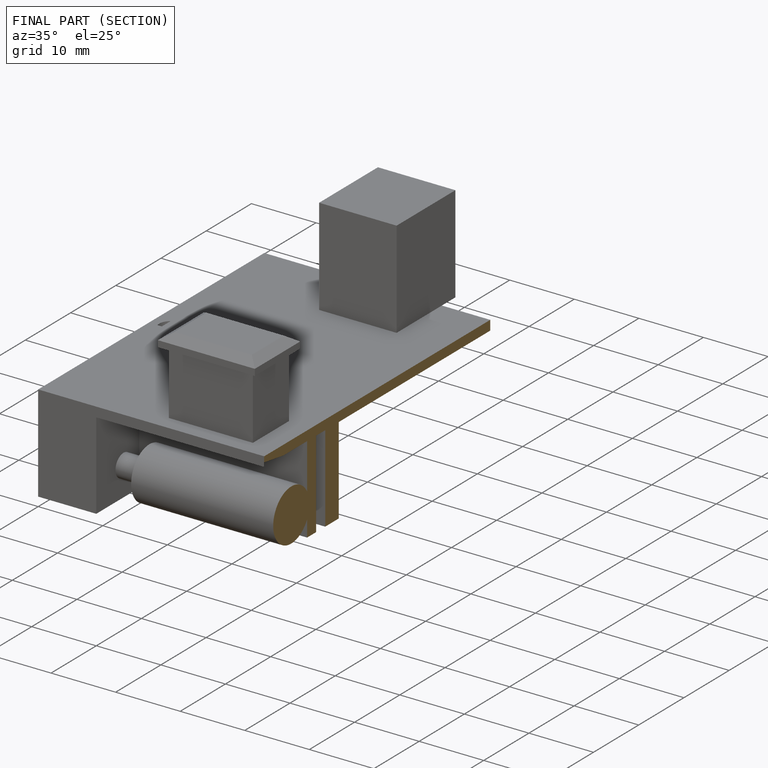
[diagram: finished part — half-section view (interior)]
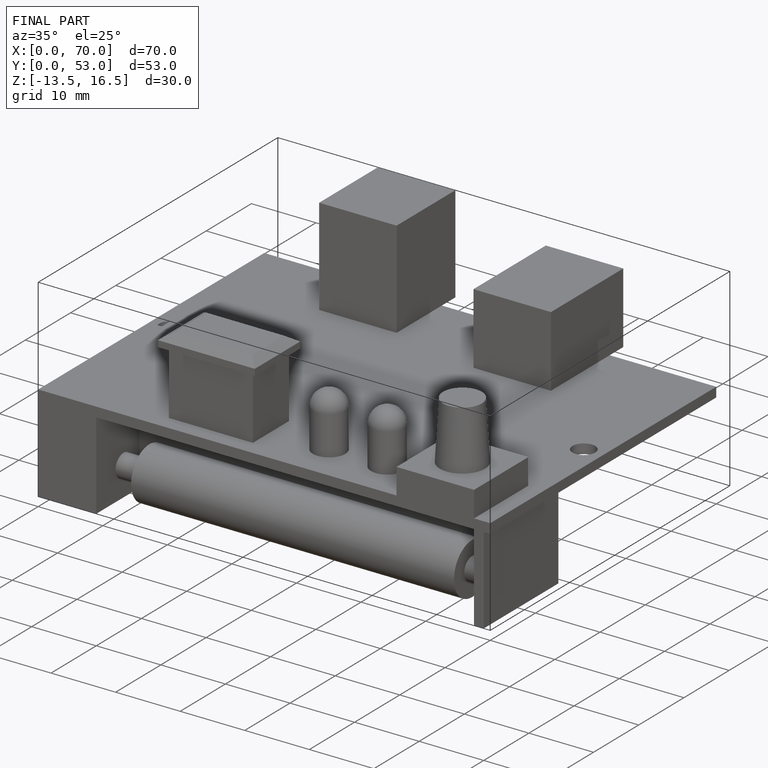
[diagram: finished part — iso view with bounding-box wireframe]
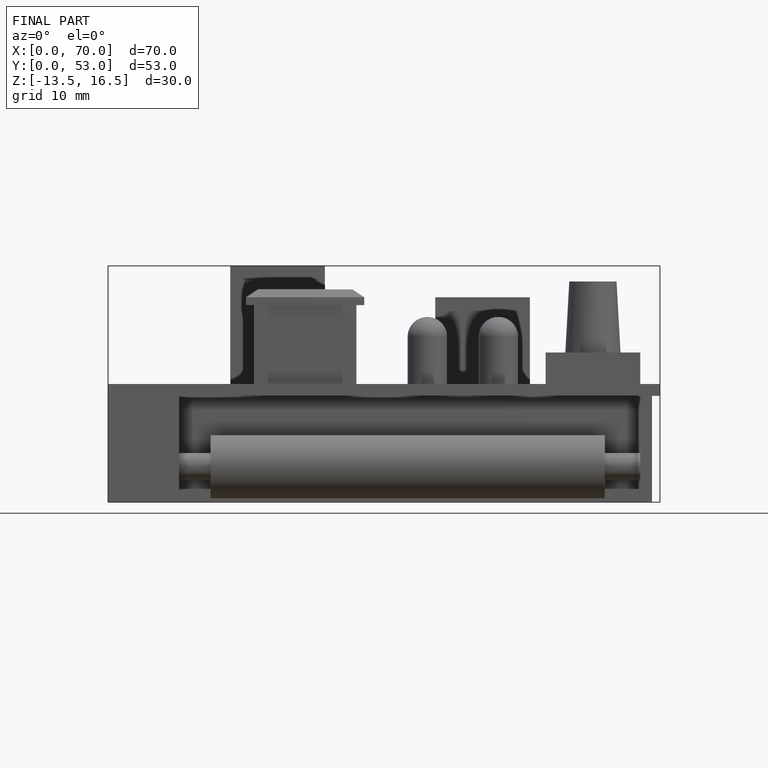
[diagram: finished part — front view with bounding-box wireframe]
